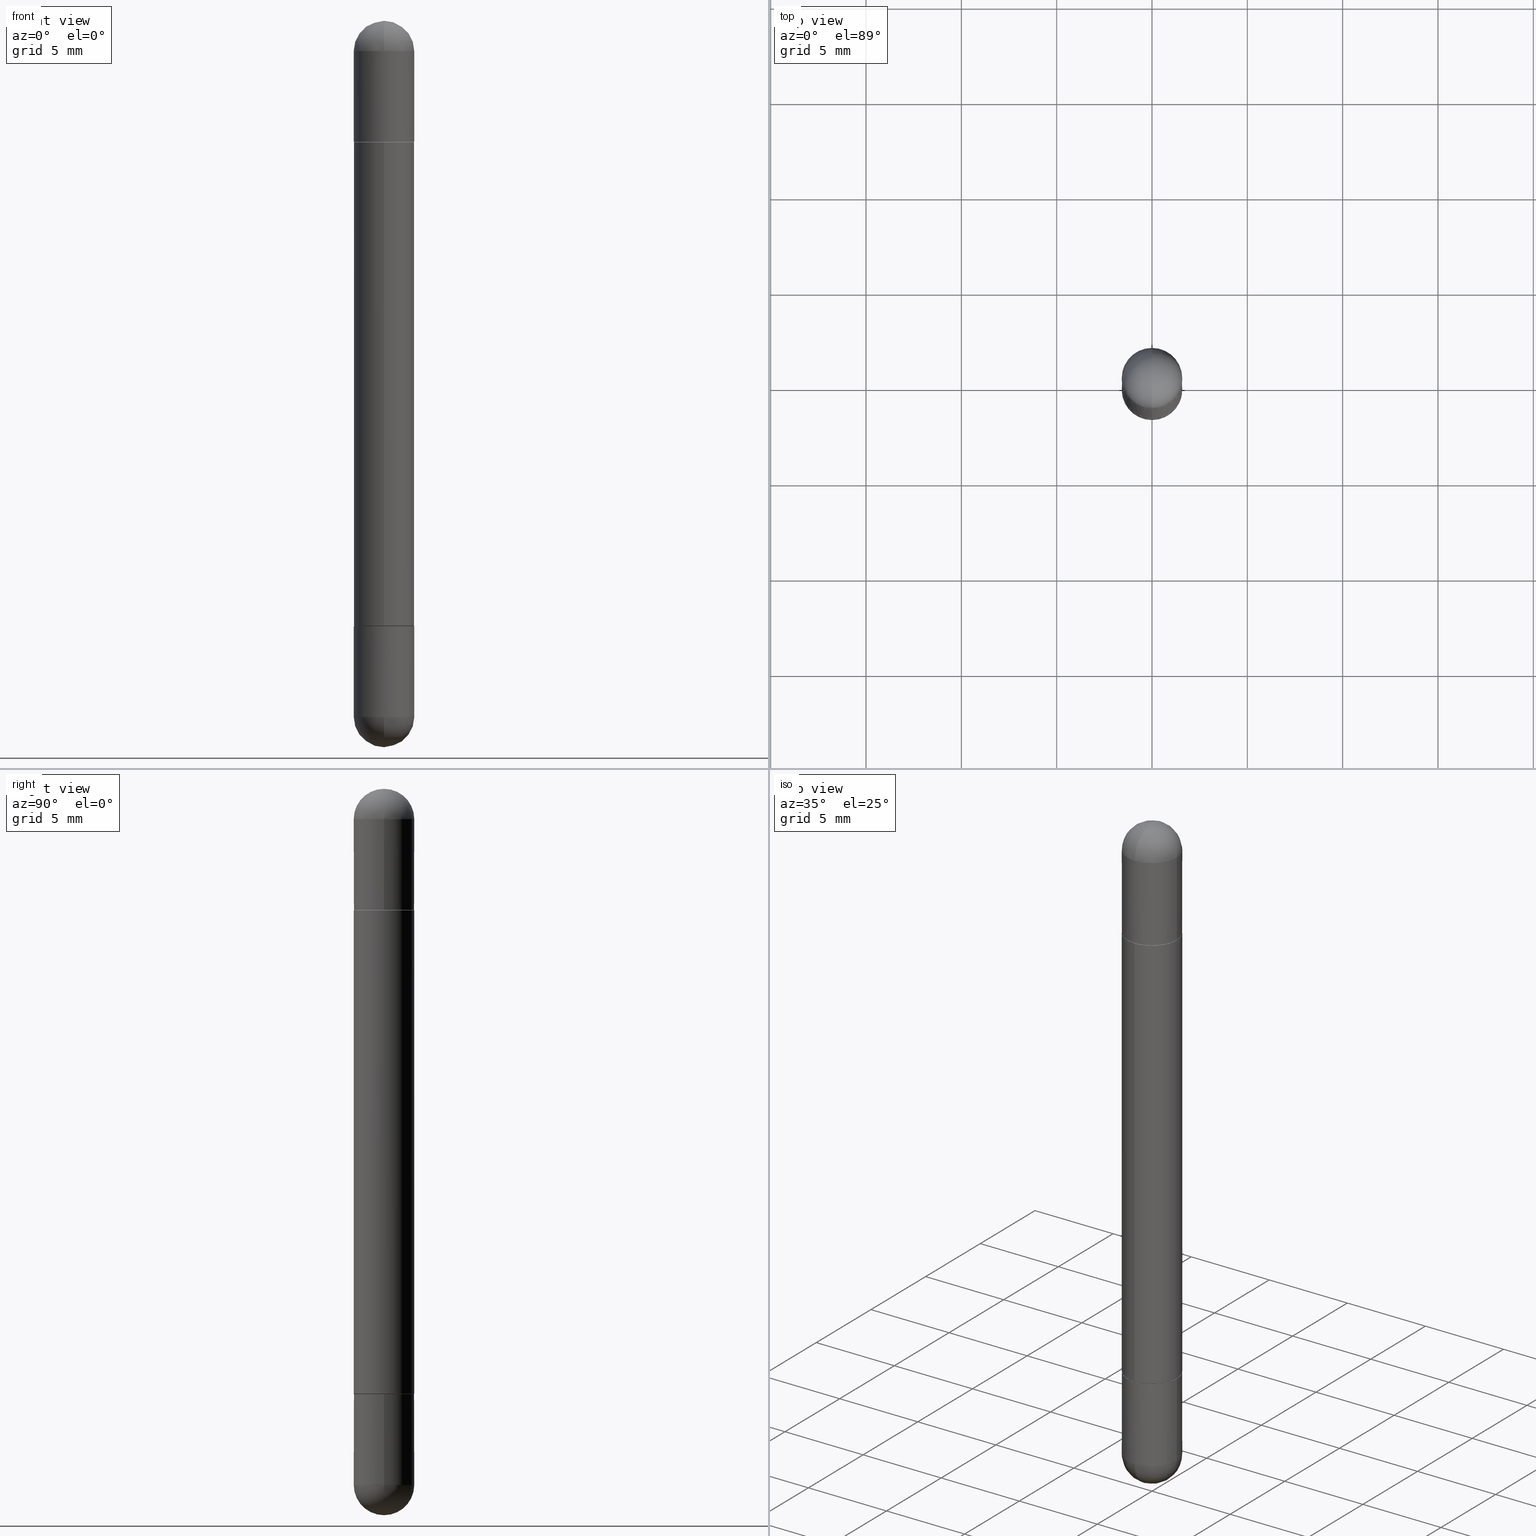
[diagram: canonical four-view strip — front | top / right | iso, engineering-drawing reading convention]
A machine part, canonical four-view strip (front | top / right | iso — engineering-drawing reading convention). The complete STEP part file that produces these views, byte-faithful:
ISO-10303-21;
HEADER;
FILE_DESCRIPTION (( 'STEP AP203' ),
    '1' );
FILE_NAME ('39614.STEP',
    '2024-03-01T12:43:19',
    ( '' ),
    ( '' ),
    'SwSTEP 2.0',
    'SolidWorks 2023',
    '' );
FILE_SCHEMA (( 'CONFIG_CONTROL_DESIGN' ));
ENDSEC;

DATA;
#1 = DIRECTION ( 'NONE',  ( -7.105427357601000281E-15, -1.000000000000000000, 0.000000000000000000 ) ) ;
#2 = VERTEX_POINT ( 'NONE', #461 ) ;
#3 = AXIS2_PLACEMENT_3D ( 'NONE', #296, #159, #338 ) ;
#4 = AXIS2_PLACEMENT_3D ( 'NONE', #14, #764, #262 ) ;
#5 =( GEOMETRIC_REPRESENTATION_CONTEXT ( 3 ) GLOBAL_UNCERTAINTY_ASSIGNED_CONTEXT ( ( #359 ) ) GLOBAL_UNIT_ASSIGNED_CONTEXT ( ( #312, #698, #658 ) ) REPRESENTATION_CONTEXT ( 'NONE', 'WORKASPACE' ) );
#6 = FACE_OUTER_BOUND ( 'NONE', #518, .T. ) ;
#7 = SPHERICAL_SURFACE ( 'NONE', #786, 0.06250000000000022204 ) ;
#8 = FACE_OUTER_BOUND ( 'NONE', #353, .T. ) ;
#9 = ADVANCED_FACE ( 'NONE', ( #317 ), #88, .T. ) ;
#10 = CARTESIAN_POINT ( 'NONE',  ( 3.056836007731421306E-29, -4.364351673553932471E-15, -1.250000000000000000 ) ) ;
#11 = CARTESIAN_POINT ( 'NONE',  ( 3.045894015080727714E-29, -4.380021229809271085E-15, -1.250000000000000000 ) ) ;
#12 = ORIENTED_EDGE ( 'NONE', *, *, #278, .F. ) ;
#13 = ADVANCED_FACE ( 'NONE', ( #8 ), #653, .T. ) ;
#14 = CARTESIAN_POINT ( 'NONE',  ( 3.184241630977248732E-29, -5.493186792727072638E-15, -0.06250000000000022204 ) ) ;
#15 = DIRECTION ( 'NONE',  ( -2.445468806185136597E-29, 3.491481338843145583E-15, -1.000000000000000000 ) ) ;
#16 = DIRECTION ( 'NONE',  ( -2.445468806185136597E-29, 3.491481338843145583E-15, 1.000000000000000000 ) ) ;
#17 = AXIS2_PLACEMENT_3D ( 'NONE', #178, #552, #565 ) ;
#18 = VECTOR ( 'NONE', #166, 39.37007874015748143 ) ;
#19 = CARTESIAN_POINT ( 'NONE',  ( 3.515361408891134418E-29, -5.019004424587023131E-15, -0.06250000000000022204 ) ) ;
#20 = CARTESIAN_POINT ( 'NONE',  ( 0.000000000000000000, 0.000000000000000000, -1.500000000000000444 ) ) ;
#21 = AXIS2_PLACEMENT_3D ( 'NONE', #337, #91, #333 ) ;
#22 = ORIENTED_EDGE ( 'NONE', *, *, #445, .T. ) ;
#23 = DIRECTION ( 'NONE',  ( 2.445468806185136597E-29, -3.491481338843145583E-15, 1.000000000000000000 ) ) ;
#24 = DATE_AND_TIME ( #412, #692 ) ;
#25 = ORIENTED_EDGE ( 'NONE', *, *, #482, .T. ) ;
#26 = CARTESIAN_POINT ( 'NONE',  ( -4.294522046776751361E-16, -0.06150000000000441225, -0.2500000000000005551 ) ) ;
#27 = DIRECTION ( 'NONE',  ( -2.445468806185136597E-29, 3.491481338843145583E-15, 1.000000000000000000 ) ) ;
#28 = ORIENTED_EDGE ( 'NONE', *, *, #157, .T. ) ;
#29 = CIRCLE ( 'NONE', #228, 0.06250000000000020817 ) ;
#30 = LINE ( 'NONE', #594, #72 ) ;
#31 = COORDINATED_UNIVERSAL_TIME_OFFSET ( 5, 0, .BEHIND. ) ;
#32 = AXIS2_PLACEMENT_3D ( 'NONE', #290, #411, #229 ) ;
#33 = CC_DESIGN_PERSON_AND_ORGANIZATION_ASSIGNMENT ( #225, #220, ( #656 ) ) ;
#34 = LINE ( 'NONE', #790, #369 ) ;
#35 = ORIENTED_EDGE ( 'NONE', *, *, #443, .F. ) ;
#36 = ADVANCED_FACE ( 'NONE', ( #645 ), #197, .T. ) ;
#37 = CARTESIAN_POINT ( 'NONE',  ( 0.06250000000000001388, -4.800786840909324141E-15, -0.2500000000000003331 ) ) ;
#38 = CARTESIAN_POINT ( 'NONE',  ( 3.056836007731421306E-29, -4.364351673553932471E-15, -0.2500000000000003331 ) ) ;
#39 = ORIENTED_EDGE ( 'NONE', *, *, #647, .T. ) ;
#40 = CARTESIAN_POINT ( 'NONE',  ( 4.364351673554259849E-16, 0.06249999999999485828, -0.06250000000000000000 ) ) ;
#41 = DIRECTION ( 'NONE',  ( 1.000000000000000000, -6.982962677686269077E-15, 0.000000000000000000 ) ) ;
#42 = ORIENTED_EDGE ( 'NONE', *, *, #157, .F. ) ;
#43 = FACE_OUTER_BOUND ( 'NONE', #485, .T. ) ;
#44 = DIRECTION ( 'NONE',  ( 2.436715212064582003E-29, -3.504016983847416079E-15, 1.000000000000000000 ) ) ;
#45 = AXIS2_PLACEMENT_3D ( 'NONE', #119, #810, #171 ) ;
#46 = AXIS2_PLACEMENT_3D ( 'NONE', #634, #66, #441 ) ;
#47 = ORIENTED_EDGE ( 'NONE', *, *, #422, .T. ) ;
#48 = ADVANCED_FACE ( 'NONE', ( #382 ), #322, .F. ) ;
#49 = AXIS2_PLACEMENT_3D ( 'NONE', #201, #453, #78 ) ;
#50 = ADVANCED_FACE ( 'NONE', ( #709 ), #387, .T. ) ;
#51 = FACE_OUTER_BOUND ( 'NONE', #253, .T. ) ;
#52 = ORIENTED_EDGE ( 'NONE', *, *, #742, .T. ) ;
#53 = CARTESIAN_POINT ( 'NONE',  ( 4.287811248607399511E-16, 0.06249999999999582279, -1.249000000000000332 ) ) ;
#54 = EDGE_LOOP ( 'NONE', ( #687, #170, #493, #28 ) ) ;
#55 = LINE ( 'NONE', #427, #584 ) ;
#56 = CC_DESIGN_DATE_AND_TIME_ASSIGNMENT ( #714, #340, ( #763 ) ) ;
#57 = AXIS2_PLACEMENT_3D ( 'NONE', #246, #623, #360 ) ;
#58 = ORIENTED_EDGE ( 'NONE', *, *, #685, .T. ) ;
#59 = VECTOR ( 'NONE', #77, 39.37007874015748854 ) ;
#60 = APPLICATION_CONTEXT ( 'configuration controlled 3d designs of mechanical parts and assemblies' ) ;
#61 = CARTESIAN_POINT ( 'NONE',  ( 3.184241630977248732E-29, -5.493186792727072638E-15, -1.437500000000000222 ) ) ;
#62 = ORIENTED_EDGE ( 'NONE', *, *, #240, .F. ) ;
#63 = LINE ( 'NONE', #747, #97 ) ;
#64 = ORIENTED_EDGE ( 'NONE', *, *, #751, .F. ) ;
#65 = PERSON ( 'UNSPECIFIED', 'UNSPECIFIED', 'UNSPECIFIED', ('UNSPECIFIED'), ('UNSPECIFIED'), ('UNSPECIFIED') ) ;
#66 = DIRECTION ( 'NONE',  ( 2.445468806185136597E-29, -3.491481338843145583E-15, 1.000000000000000000 ) ) ;
#67 = CARTESIAN_POINT ( 'NONE',  ( -0.06250000000000001388, 4.440892098500627148E-16, -3.074334431409317165E-30 ) ) ;
#68 = ORIENTED_EDGE ( 'NONE', *, *, #218, .T. ) ;
#69 = CIRCLE ( 'NONE', #198, 0.06250000000000001388 ) ;
#70 = EDGE_CURVE ( 'NONE', #808, #816, #316, .T. ) ;
#71 = CIRCLE ( 'NONE', #358, 0.06250000000000001388 ) ;
#72 = VECTOR ( 'NONE', #339, 39.37007874015748143 ) ;
#73 = AXIS2_PLACEMENT_3D ( 'NONE', #81, #74, #141 ) ;
#74 = DIRECTION ( 'NONE',  ( -2.436715212064582003E-29, 3.504016983847416079E-15, -1.000000000000000000 ) ) ;
#75 = EDGE_CURVE ( 'NONE', #308, #551, #69, .T. ) ;
#76 = DIRECTION ( 'NONE',  ( 6.982962677686266711E-15, 1.000000000000000000, 3.551402391763529759E-15 ) ) ;
#77 = DIRECTION ( 'NONE',  ( -4.937700262164799689E-15, -0.7071067811865812125, -0.7071067811865135999 ) ) ;
#78 = DIRECTION ( 'NONE',  ( 1.000000000000000000, -6.982962677686261189E-15, 0.000000000000000000 ) ) ;
#79 = DIRECTION ( 'NONE',  ( 2.438088387897960049E-29, -3.491481338843145188E-15, 1.000000000000000000 ) ) ;
#80 = DIRECTION ( 'NONE',  ( -2.436715212064582003E-29, 3.504016983847416079E-15, -1.000000000000000000 ) ) ;
#81 = CARTESIAN_POINT ( 'NONE',  ( 3.045894015080727714E-29, -4.380021229809271085E-15, -0.2500000000000003331 ) ) ;
#82 = VERTEX_POINT ( 'NONE', #287 ) ;
#83 = ADVANCED_FACE ( 'NONE', ( #355 ), #134, .T. ) ;
#84 = CIRCLE ( 'NONE', #45, 0.06150000000000003381 ) ;
#85 = CIRCLE ( 'NONE', #114, 0.06250000000000011102 ) ;
#86 = DIRECTION ( 'NONE',  ( -2.436715212064582003E-29, 3.504016983847416079E-15, 1.000000000000000000 ) ) ;
#87 = CC_DESIGN_APPROVAL ( #261, ( #763 ) ) ;
#88 = SPHERICAL_SURFACE ( 'NONE', #239, 0.06250000000000022204 ) ;
#89 = MANIFOLD_SOLID_BREP ( 'Mirror4[1]', #516 ) ;
#90 = DIRECTION ( 'NONE',  ( -2.445468806185136877E-29, 3.491481338843145188E-15, -1.000000000000000000 ) ) ;
#91 = DIRECTION ( 'NONE',  ( 0.000000000000000000, 0.000000000000000000, 1.000000000000000000 ) ) ;
#92 = DIRECTION ( 'NONE',  ( -6.982962677686266711E-15, -1.000000000000000000, 0.000000000000000000 ) ) ;
#93 = CARTESIAN_POINT ( 'NONE',  ( 0.000000000000000000, 0.000000000000000000, -1.500000000000000444 ) ) ;
#94 = DIRECTION ( 'NONE',  ( 1.000000000000000000, -6.982962677686261189E-15, 0.000000000000000000 ) ) ;
#95 = VERTEX_POINT ( 'NONE', #673 ) ;
#96 = ADVANCED_FACE ( 'NONE', ( #150 ), #416, .F. ) ;
#97 = VECTOR ( 'NONE', #554, 39.37007874015748143 ) ;
#98 = DIRECTION ( 'NONE',  ( -6.982962677686265922E-15, -1.000000000000000000, -3.331521943493002126E-15 ) ) ;
#99 = DATE_AND_TIME ( #602, #640 ) ;
#100 = AXIS2_PLACEMENT_3D ( 'NONE', #200, #80, #578 ) ;
#101 = AXIS2_PLACEMENT_3D ( 'NONE', #379, #571, #315 ) ;
#102 = CARTESIAN_POINT ( 'NONE',  ( 3.515361408891134418E-29, -5.019004424587023131E-15, -1.437500000000000222 ) ) ;
#103 = VERTEX_POINT ( 'NONE', #401 ) ;
#104 = FACE_OUTER_BOUND ( 'NONE', #624, .T. ) ;
#105 = CALENDAR_DATE ( 2024, 1, 3 ) ;
#106 = DIRECTION ( 'NONE',  ( -2.436715212064582003E-29, 3.504016983847416079E-15, 1.000000000000000000 ) ) ;
#107 = VERTEX_POINT ( 'NONE', #784 ) ;
#108 = SPHERICAL_SURFACE ( 'NONE', #199, 0.06250000000000022204 ) ;
#109 = EDGE_CURVE ( 'NONE', #107, #377, #161, .T. ) ;
#110 = DIRECTION ( 'NONE',  ( -6.982962677686265922E-15, -1.000000000000000000, -3.278217592397104818E-15 ) ) ;
#111 = ORIENTED_EDGE ( 'NONE', *, *, #250, .F. ) ;
#112 = LINE ( 'NONE', #237, #517 ) ;
#113 = AXIS2_PLACEMENT_3D ( 'NONE', #419, #434, #298 ) ;
#114 = AXIS2_PLACEMENT_3D ( 'NONE', #522, #777, #479 ) ;
#115 = ORIENTED_EDGE ( 'NONE', *, *, #742, .F. ) ;
#116 = LOCAL_TIME ( 7, 43, 19.00000000000000000, #460 ) ;
#117 = DIRECTION ( 'NONE',  ( 1.000000000000000000, -6.982962677686267499E-15, 0.000000000000000000 ) ) ;
#118 = ORIENTED_EDGE ( 'NONE', *, *, #240, .T. ) ;
#119 = CARTESIAN_POINT ( 'NONE',  ( 3.045894015080727714E-29, -4.380021229809271085E-15, -0.2500000000000003331 ) ) ;
#120 = ORIENTED_EDGE ( 'NONE', *, *, #323, .T. ) ;
#121 = EDGE_CURVE ( 'NONE', #679, #202, #755, .T. ) ;
#122 = DIRECTION ( 'NONE',  ( 2.445468806185136597E-29, -3.491481338843145583E-15, 1.000000000000000000 ) ) ;
#123 = CIRCLE ( 'NONE', #557, 0.06250000000000022204 ) ;
#124 = ORIENTED_EDGE ( 'NONE', *, *, #70, .T. ) ;
#125 = VECTOR ( 'NONE', #737, 39.37007874015748143 ) ;
#126 = FACE_OUTER_BOUND ( 'NONE', #690, .T. ) ;
#127 = ORIENTED_EDGE ( 'NONE', *, *, #75, .F. ) ;
#128 = DIRECTION ( 'NONE',  ( -2.436715212064582003E-29, 3.504016983847416079E-15, 1.000000000000000000 ) ) ;
#129 = EDGE_CURVE ( 'NONE', #374, #95, #29, .T. ) ;
#130 = EDGE_LOOP ( 'NONE', ( #288, #64 ) ) ;
#131 = EDGE_CURVE ( 'NONE', #202, #679, #330, .T. ) ;
#132 = DIRECTION ( 'NONE',  ( 1.000000000000000000, -6.982962677686261189E-15, 0.000000000000000000 ) ) ;
#133 = VERTEX_POINT ( 'NONE', #794 ) ;
#134 = CONICAL_SURFACE ( 'NONE', #3, 0.06150000000000003381, 0.7853981633974995713 ) ;
#135 = VECTOR ( 'NONE', #582, 39.37007874015748143 ) ;
#136 = FACE_OUTER_BOUND ( 'NONE', #223, .T. ) ;
#137 = FACE_OUTER_BOUND ( 'NONE', #356, .T. ) ;
#138 = CARTESIAN_POINT ( 'NONE',  ( 3.184241630977248732E-29, -5.493186792727072638E-15, -1.437500000000000222 ) ) ;
#139 = DIRECTION ( 'NONE',  ( 2.445468806185136597E-29, -3.491481338843145583E-15, 1.000000000000000000 ) ) ;
#140 = EDGE_CURVE ( 'NONE', #371, #679, #291, .T. ) ;
#141 = DIRECTION ( 'NONE',  ( -6.982962677686265922E-15, -1.000000000000000000, -3.331521943493002126E-15 ) ) ;
#142 = ORIENTED_EDGE ( 'NONE', *, *, #403, .T. ) ;
#143 = SPHERICAL_SURFACE ( 'NONE', #572, 0.06250000000000022204 ) ;
#144 = APPROVAL_DATE_TIME ( #667, #469 ) ;
#145 = ORIENTED_EDGE ( 'NONE', *, *, #409, .F. ) ;
#146 = CONICAL_SURFACE ( 'NONE', #614, 0.06150000000000003381, 0.7853981633974995713 ) ;
#147 = CIRCLE ( 'NONE', #449, 0.06250000000000001388 ) ;
#148 = DIRECTION ( 'NONE',  ( 1.000000000000000000, -6.860497997771530774E-15, -4.840798879624142912E-29 ) ) ;
#149 = CALENDAR_DATE ( 2024, 1, 3 ) ;
#150 = FACE_OUTER_BOUND ( 'NONE', #342, .T. ) ;
#151 = CARTESIAN_POINT ( 'NONE',  ( 3.184241630977248732E-29, -5.493186792727072638E-15, -0.06250000000000022204 ) ) ;
#152 = DIRECTION ( 'NONE',  ( 1.000000000000000000, -6.982962677686269077E-15, 0.000000000000000000 ) ) ;
#153 = ADVANCED_FACE ( 'NONE', ( #804 ), #347, .F. ) ;
#154 = ORIENTED_EDGE ( 'NONE', *, *, #632, .T. ) ;
#155 = PRODUCT_DEFINITION_SHAPE ( 'NONE', 'NONE',  #763 ) ;
#156 = DIRECTION ( 'NONE',  ( 1.000000000000000000, -6.982962677686261189E-15, 0.000000000000000000 ) ) ;
#157 = EDGE_CURVE ( 'NONE', #816, #808, #597, .T. ) ;
#158 = PERSON_AND_ORGANIZATION ( #65, #231 ) ;
#159 = DIRECTION ( 'NONE',  ( -2.436715212064582003E-29, 3.504016983847416079E-15, -1.000000000000000000 ) ) ;
#160 = ORIENTED_EDGE ( 'NONE', *, *, #70, .F. ) ;
#161 = CIRCLE ( 'NONE', #266, 0.06250000000000020817 ) ;
#162 = FACE_OUTER_BOUND ( 'NONE', #481, .T. ) ;
#163 = AXIS2_PLACEMENT_3D ( 'NONE', #10, #651, #255 ) ;
#164 = DIRECTION ( 'NONE',  ( -1.000000000000000000, 6.982962677686265922E-15, 4.883557194083112340E-29 ) ) ;
#165 = ORIENTED_EDGE ( 'NONE', *, *, #647, .F. ) ;
#166 = DIRECTION ( 'NONE',  ( -2.436715212064582283E-29, 3.504016983847416079E-15, -1.000000000000000000 ) ) ;
#167 = DIRECTION ( 'NONE',  ( 1.000000000000000000, -6.982962677686261189E-15, 0.000000000000000000 ) ) ;
#168 = EDGE_LOOP ( 'NONE', ( #729, #665, #207, #62, #25 ) ) ;
#169 = PLANE ( 'NONE',  #113 ) ;
#170 = ORIENTED_EDGE ( 'NONE', *, *, #457, .F. ) ;
#171 = DIRECTION ( 'NONE',  ( -6.982962677686265922E-15, -1.000000000000000000, -3.331521943493002126E-15 ) ) ;
#172 = CIRCLE ( 'NONE', #32, 0.06250000000000001388 ) ;
#173 = CC_DESIGN_SECURITY_CLASSIFICATION ( #243, ( #656 ) ) ;
#174 = ORIENTED_EDGE ( 'NONE', *, *, #383, .T. ) ;
#175 = LOCAL_TIME ( 7, 43, 19.00000000000000000, #718 ) ;
#176 = EDGE_LOOP ( 'NONE', ( #247, #361, #120, #745 ) ) ;
#177 = CC_DESIGN_PERSON_AND_ORGANIZATION_ASSIGNMENT ( #672, #591, ( #284 ) ) ;
#178 = CARTESIAN_POINT ( 'NONE',  ( 3.184241630977248732E-29, -5.493186792727072638E-15, -1.437500000000000222 ) ) ;
#179 = ORIENTED_EDGE ( 'NONE', *, *, #204, .T. ) ;
#180 = ADVANCED_FACE ( 'NONE', ( #484 ), #603, .T. ) ;
#181 = CARTESIAN_POINT ( 'NONE',  ( 3.184241630977248732E-29, -5.493186792727072638E-15, -0.06250000000000022204 ) ) ;
#182 = ORIENTED_EDGE ( 'NONE', *, *, #506, .T. ) ;
#183 = CARTESIAN_POINT ( 'NONE',  ( 0.06250000000000001388, -4.364351673553918173E-16, 3.047610484872460571E-30 ) ) ;
#184 = CARTESIAN_POINT ( 'NONE',  ( 3.045894015080727714E-29, -4.380021229809271085E-15, -0.2500000000000003331 ) ) ;
#185 = ORIENTED_EDGE ( 'NONE', *, *, #573, .T. ) ;
#186 = CIRCLE ( 'NONE', #637, 0.06250000000000001388 ) ;
#187 = AXIS2_PLACEMENT_3D ( 'NONE', #579, #442, #263 ) ;
#188 = EDGE_CURVE ( 'NONE', #271, #371, #744, .T. ) ;
#189 = DIRECTION ( 'NONE',  ( -6.982962677686265922E-15, -1.000000000000000000, 4.370956789862806950E-15 ) ) ;
#190 = CYLINDRICAL_SURFACE ( 'NONE', #627, 0.06250000000000001388 ) ;
#191 = EDGE_LOOP ( 'NONE', ( #771, #329 ) ) ;
#192 = FACE_OUTER_BOUND ( 'NONE', #553, .T. ) ;
#193 = FACE_OUTER_BOUND ( 'NONE', #774, .T. ) ;
#194 = ORIENTED_EDGE ( 'NONE', *, *, #121, .T. ) ;
#195 = DIRECTION ( 'NONE',  ( 1.000000000000000000, -6.982962677686261189E-15, 0.000000000000000000 ) ) ;
#196 = LINE ( 'NONE', #753, #532 ) ;
#197 = SPHERICAL_SURFACE ( 'NONE', #421, 0.06250000000000022204 ) ;
#198 = AXIS2_PLACEMENT_3D ( 'NONE', #102, #27, #167 ) ;
#199 = AXIS2_PLACEMENT_3D ( 'NONE', #151, #540, #661 ) ;
#200 = CARTESIAN_POINT ( 'NONE',  ( 3.045894015080727714E-29, -4.380021229809271085E-15, -0.2500000000000003331 ) ) ;
#201 = CARTESIAN_POINT ( 'NONE',  ( 3.515361408891134418E-29, -5.019004424587023131E-15, -1.437500000000000222 ) ) ;
#202 = VERTEX_POINT ( 'NONE', #341 ) ;
#203 = EDGE_CURVE ( 'NONE', #377, #107, #733, .T. ) ;
#204 = EDGE_CURVE ( 'NONE', #699, #82, #488, .T. ) ;
#205 = CARTESIAN_POINT ( 'NONE',  ( 3.515361408891134418E-29, -5.019004424587023131E-15, -0.06250000000000022204 ) ) ;
#206 = CALENDAR_DATE ( 2024, 1, 3 ) ;
#207 = ORIENTED_EDGE ( 'NONE', *, *, #245, .F. ) ;
#208 = CARTESIAN_POINT ( 'NONE',  ( -4.364351673553924090E-16, -0.06250000000000011102, -1.500000000000000666 ) ) ;
#209 = PERSON_AND_ORGANIZATION ( #65, #231 ) ;
#210 = ORIENTED_EDGE ( 'NONE', *, *, #598, .T. ) ;
#211 = VECTOR ( 'NONE', #668, 39.37007874015748143 ) ;
#212 = CIRCLE ( 'NONE', #4, 0.06250000000000022204 ) ;
#213 = EDGE_CURVE ( 'NONE', #440, #524, #680, .T. ) ;
#214 = LINE ( 'NONE', #601, #705 ) ;
#215 = PERSON_AND_ORGANIZATION ( #65, #231 ) ;
#216 = CARTESIAN_POINT ( 'NONE',  ( 3.045894015080727714E-29, -4.380021229809271085E-15, -0.2500000000000003331 ) ) ;
#217 = ORIENTED_EDGE ( 'NONE', *, *, #573, .F. ) ;
#218 = EDGE_CURVE ( 'NONE', #802, #377, #34, .T. ) ;
#219 = LINE ( 'NONE', #354, #615 ) ;
#220 = PERSON_AND_ORGANIZATION_ROLE ( 'creator' ) ;
#221 = DIRECTION ( 'NONE',  ( 4.851104656541212766E-15, 0.7071067811865862085, -0.7071067811865088260 ) ) ;
#222 = VERTEX_POINT ( 'NONE', #471 ) ;
#223 = EDGE_LOOP ( 'NONE', ( #505, #683, #47, #538, #688 ) ) ;
#224 = DIRECTION ( 'NONE',  ( 2.438088387897960049E-29, -3.491481338843145188E-15, 1.000000000000000000 ) ) ;
#225 = PERSON_AND_ORGANIZATION ( #65, #231 ) ;
#226 = DIRECTION ( 'NONE',  ( -6.982962677686265922E-15, -1.000000000000000000, -3.504016983847416079E-15 ) ) ;
#227 = VERTEX_POINT ( 'NONE', #693 ) ;
#228 = AXIS2_PLACEMENT_3D ( 'NONE', #542, #106, #607 ) ;
#229 = DIRECTION ( 'NONE',  ( 1.000000000000000000, -6.982962677686269077E-15, 0.000000000000000000 ) ) ;
#230 = AXIS2_PLACEMENT_3D ( 'NONE', #465, #525, #98 ) ;
#231 = ORGANIZATION ( 'UNSPECIFIED', 'UNSPECIFIED', '' ) ;
#232 = DIRECTION ( 'NONE',  ( -2.436715212064582003E-29, 3.504016983847416079E-15, -1.000000000000000000 ) ) ;
#233 = ORIENTED_EDGE ( 'NONE', *, *, #472, .F. ) ;
#234 = DIRECTION ( 'NONE',  ( -2.445468806185136597E-29, 3.491481338843145583E-15, 1.000000000000000000 ) ) ;
#235 = CARTESIAN_POINT ( 'NONE',  ( 3.043457299868662493E-29, -4.376517212825422160E-15, -0.2510000000000003895 ) ) ;
#236 = EDGE_LOOP ( 'NONE', ( #655, #487, #513, #118, #417 ) ) ;
#237 = CARTESIAN_POINT ( 'NONE',  ( -4.294522046776751361E-16, -0.06150000000000441225, -1.249999999999999778 ) ) ;
#238 = ORIENTED_EDGE ( 'NONE', *, *, #519, .T. ) ;
#239 = AXIS2_PLACEMENT_3D ( 'NONE', #138, #574, #589 ) ;
#240 = EDGE_CURVE ( 'NONE', #103, #244, #752, .T. ) ;
#241 = CARTESIAN_POINT ( 'NONE',  ( 0.06250000000000001388, -4.800786840909324141E-15, -1.250000000000000000 ) ) ;
#242 = AXIS2_PLACEMENT_3D ( 'NONE', #770, #520, #132 ) ;
#243 = SECURITY_CLASSIFICATION ( '', '', #782 ) ;
#244 = VERTEX_POINT ( 'NONE', #241 ) ;
#245 = EDGE_CURVE ( 'NONE', #244, #543, #448, .T. ) ;
#246 = CARTESIAN_POINT ( 'NONE',  ( 3.056836007731421306E-29, -4.364351673553932471E-15, -1.250000000000000000 ) ) ;
#247 = ORIENTED_EDGE ( 'NONE', *, *, #204, .F. ) ;
#248 = DIRECTION ( 'NONE',  ( -1.000000000000000000, 0.000000000000000000, 0.000000000000000000 ) ) ;
#249 = ORIENTED_EDGE ( 'NONE', *, *, #710, .T. ) ;
#250 = EDGE_CURVE ( 'NONE', #808, #2, #63, .T. ) ;
#251 = DIRECTION ( 'NONE',  ( -6.982962677686265922E-15, -1.000000000000000000, -3.331521943493002126E-15 ) ) ;
#252 = AXIS2_PLACEMENT_3D ( 'NONE', #430, #122, #740 ) ;
#253 = EDGE_LOOP ( 'NONE', ( #402, #530, #546, #210, #154 ) ) ;
#254 = AXIS2_PLACEMENT_3D ( 'NONE', #455, #128, #375 ) ;
#255 = DIRECTION ( 'NONE',  ( 1.000000000000000000, -6.982962677686269077E-15, 0.000000000000000000 ) ) ;
#256 = DIRECTION ( 'NONE',  ( -2.445468806185136597E-29, 3.491481338843145583E-15, -1.000000000000000000 ) ) ;
#257 = ORIENTED_EDGE ( 'NONE', *, *, #560, .T. ) ;
#258 = DIRECTION ( 'NONE',  ( -2.445468806185136597E-29, 3.491481338843145583E-15, -1.000000000000000000 ) ) ;
#259 = DIRECTION ( 'NONE',  ( -6.982962677686265922E-15, -1.000000000000000000, -3.331521943493002126E-15 ) ) ;
#260 = DIRECTION ( 'NONE',  ( 1.000000000000000000, -6.982962677686266711E-15, -4.883557194083112901E-29 ) ) ;
#261 = APPROVAL ( #773, 'UNSPECIFIED' ) ;
#262 = DIRECTION ( 'NONE',  ( -6.982962677686266711E-15, -1.000000000000000000, 0.000000000000000000 ) ) ;
#263 = DIRECTION ( 'NONE',  ( -1.000000000000000000, 6.982962677686265922E-15, -4.876176775795935793E-29 ) ) ;
#264 = EDGE_CURVE ( 'NONE', #273, #739, #123, .T. ) ;
#265 = DIRECTION ( 'NONE',  ( 1.000000000000000000, -6.982962677686267499E-15, 4.876176775795935793E-29 ) ) ;
#266 = AXIS2_PLACEMENT_3D ( 'NONE', #725, #44, #550 ) ;
#267 = CONICAL_SURFACE ( 'NONE', #100, 0.06150000000000003381, 0.7853981633974995713 ) ;
#268 = AXIS2_PLACEMENT_3D ( 'NONE', #20, #447, #707 ) ;
#269 = DIRECTION ( 'NONE',  ( 2.445468806185136597E-29, -3.491481338843145583E-15, 1.000000000000000000 ) ) ;
#270 = LINE ( 'NONE', #67, #331 ) ;
#271 = VERTEX_POINT ( 'NONE', #743 ) ;
#272 = CARTESIAN_POINT ( 'NONE',  ( 4.253508758618661753E-16, 0.06149999999999564843, -0.2500000000000001110 ) ) ;
#273 = VERTEX_POINT ( 'NONE', #561 ) ;
#274 = EDGE_CURVE ( 'NONE', #699, #524, #669, .T. ) ;
#275 = CARTESIAN_POINT ( 'NONE',  ( -0.06250000000000001388, -4.247588839220414790E-15, -1.250000000000000000 ) ) ;
#276 = PERSON_AND_ORGANIZATION_ROLE ( 'creator' ) ;
#277 = CARTESIAN_POINT ( 'NONE',  ( 3.515361408891134418E-29, -5.019004424587023131E-15, -0.06250000000000022204 ) ) ;
#278 = EDGE_CURVE ( 'NONE', #273, #308, #462, .T. ) ;
#279 = ORIENTED_EDGE ( 'NONE', *, *, #203, .F. ) ;
#280 = AXIS2_PLACEMENT_3D ( 'NONE', #650, #528, #612 ) ;
#281 = CIRCLE ( 'NONE', #547, 0.06250000000000022204 ) ;
#282 = DIRECTION ( 'NONE',  ( 1.000000000000000000, -6.982962677686261189E-15, 0.000000000000000000 ) ) ;
#283 = COORDINATED_UNIVERSAL_TIME_OFFSET ( 5, 0, .BEHIND. ) ;
#284 = PRODUCT ( '39614', '39614', '', ( #793 ) ) ;
#285 = DIRECTION ( 'NONE',  ( -2.436715212064581723E-29, 3.504016983847416079E-15, -1.000000000000000000 ) ) ;
#286 = ORIENTED_EDGE ( 'NONE', *, *, #482, .F. ) ;
#287 = CARTESIAN_POINT ( 'NONE',  ( 4.364351673554259849E-16, 0.06249999999999485828, -0.06250000000000000000 ) ) ;
#288 = ORIENTED_EDGE ( 'NONE', *, *, #519, .F. ) ;
#289 = EDGE_CURVE ( 'NONE', #802, #222, #84, .T. ) ;
#290 = CARTESIAN_POINT ( 'NONE',  ( 3.056836007731421306E-29, -4.364351673553932471E-15, -0.2500000000000003331 ) ) ;
#291 = LINE ( 'NONE', #799, #211 ) ;
#292 = ORIENTED_EDGE ( 'NONE', *, *, #278, .T. ) ;
#293 = AXIS2_PLACEMENT_3D ( 'NONE', #216, #285, #226 ) ;
#294 = CYLINDRICAL_SURFACE ( 'NONE', #585, 0.06250000000000001388 ) ;
#295 = CIRCLE ( 'NONE', #242, 0.06250000000000001388 ) ;
#296 = CARTESIAN_POINT ( 'NONE',  ( 3.045894015080727714E-29, -4.380021229809271085E-15, -0.2500000000000003331 ) ) ;
#297 = ORIENTED_EDGE ( 'NONE', *, *, #662, .T. ) ;
#298 = DIRECTION ( 'NONE',  ( -6.982962677686265922E-15, -1.000000000000000000, 3.504016983847416079E-15 ) ) ;
#299 = VERTEX_POINT ( 'NONE', #630 ) ;
#300 = EDGE_CURVE ( 'NONE', #613, #816, #55, .T. ) ;
#301 = CARTESIAN_POINT ( 'NONE',  ( 4.287811248607524250E-16, 0.06249999999999581585, -0.2510000000000002229 ) ) ;
#302 = ORIENTED_EDGE ( 'NONE', *, *, #264, .F. ) ;
#303 = ADVANCED_FACE ( 'NONE', ( #126 ), #146, .T. ) ;
#304 = AXIS2_PLACEMENT_3D ( 'NONE', #689, #490, #311 ) ;
#305 = CARTESIAN_POINT ( 'NONE',  ( 3.045894015080727714E-29, -4.380021229809271085E-15, -0.2500000000000003331 ) ) ;
#306 = CIRCLE ( 'NONE', #436, 0.06150000000000003381 ) ;
#307 = ORIENTED_EDGE ( 'NONE', *, *, #250, .T. ) ;
#308 = VERTEX_POINT ( 'NONE', #372 ) ;
#309 = DIRECTION ( 'NONE',  ( -4.937700262164799689E-15, -0.7071067811865812125, 0.7071067811865135999 ) ) ;
#310 = ORIENTED_EDGE ( 'NONE', *, *, #218, .F. ) ;
#311 = DIRECTION ( 'NONE',  ( 6.860497997771530774E-15, 1.000000000000000000, 0.000000000000000000 ) ) ;
#312 =( CONVERSION_BASED_UNIT ( 'INCH', #583 ) LENGTH_UNIT ( ) NAMED_UNIT ( #527 ) );
#313 = ORIENTED_EDGE ( 'NONE', *, *, #140, .T. ) ;
#314 = CARTESIAN_POINT ( 'NONE',  ( 3.043457299868662493E-29, -4.376517212825422160E-15, -1.248999999999999888 ) ) ;
#315 = DIRECTION ( 'NONE',  ( -6.982962677686265922E-15, -1.000000000000000000, 4.442029257990669764E-15 ) ) ;
#316 = CIRCLE ( 'NONE', #280, 0.06250000000000020817 ) ;
#317 = FACE_OUTER_BOUND ( 'NONE', #468, .T. ) ;
#318 = CIRCLE ( 'NONE', #254, 0.06150000000000003381 ) ;
#319 = DIRECTION ( 'NONE',  ( 1.000000000000000000, -6.982962677686269077E-15, 0.000000000000000000 ) ) ;
#320 = CC_DESIGN_PERSON_AND_ORGANIZATION_ASSIGNMENT ( #391, #652, ( #656 ) ) ;
#321 = DIRECTION ( 'NONE',  ( 1.000000000000000000, -6.982962677686266711E-15, -4.883557194083112901E-29 ) ) ;
#322 = PLANE ( 'NONE',  #811 ) ;
#323 = EDGE_CURVE ( 'NONE', #524, #133, #500, .T. ) ;
#324 = FACE_OUTER_BOUND ( 'NONE', #760, .T. ) ;
#325 = DIRECTION ( 'NONE',  ( 2.436715212064582003E-29, -3.504016983847416079E-15, 1.000000000000000000 ) ) ;
#326 = CARTESIAN_POINT ( 'NONE',  ( 0.000000000000000000, 0.000000000000000000, 0.000000000000000000 ) ) ;
#327 = CARTESIAN_POINT ( 'NONE',  ( 3.045894015080727714E-29, -4.380021229809271085E-15, -0.2500000000000003331 ) ) ;
#328 = CARTESIAN_POINT ( 'NONE',  ( 0.000000000000000000, 0.000000000000000000, -1.500000000000000444 ) ) ;
#329 = ORIENTED_EDGE ( 'NONE', *, *, #422, .F. ) ;
#330 = CIRCLE ( 'NONE', #380, 0.06250000000000001388 ) ;
#331 = VECTOR ( 'NONE', #631, 39.37007874015748143 ) ;
#332 = DIRECTION ( 'NONE',  ( -2.436715212064582283E-29, 3.504016983847416079E-15, -1.000000000000000000 ) ) ;
#333 = DIRECTION ( 'NONE',  ( 1.000000000000000000, 0.000000000000000000, 0.000000000000000000 ) ) ;
#334 = EDGE_LOOP ( 'NONE', ( #160, #307, #674, #618 ) ) ;
#335 = ADVANCED_FACE ( 'NONE', ( #628 ), #169, .F. ) ;
#336 = FACE_OUTER_BOUND ( 'NONE', #635, .T. ) ;
#337 = CARTESIAN_POINT ( 'NONE',  ( 0.000000000000000000, 0.000000000000000000, 0.000000000000000000 ) ) ;
#338 = DIRECTION ( 'NONE',  ( -6.982962677686265922E-15, -1.000000000000000000, -3.331521943493002126E-15 ) ) ;
#339 = DIRECTION ( 'NONE',  ( -2.445468806185136877E-29, 3.491481338843145188E-15, -1.000000000000000000 ) ) ;
#340 = DATE_TIME_ROLE ( 'creation_date' ) ;
#341 = CARTESIAN_POINT ( 'NONE',  ( -0.06250000000000001388, -4.262896924209756684E-15, -0.2500000000000003331 ) ) ;
#342 = EDGE_LOOP ( 'NONE', ( #58, #586 ) ) ;
#343 = AXIS2_PLACEMENT_3D ( 'NONE', #277, #413, #596 ) ;
#344 = MANIFOLD_SOLID_BREP ( 'Combine1', #780 ) ;
#345 = AXIS2_PLACEMENT_3D ( 'NONE', #425, #682, #117 ) ;
#346 = CARTESIAN_POINT ( 'NONE',  ( 3.515361408891134418E-29, -5.019004424587023131E-15, -0.06250000000000022204 ) ) ;
#347 = PLANE ( 'NONE',  #293 ) ;
#348 = EDGE_CURVE ( 'NONE', #2, #227, #569, .T. ) ;
#349 = VERTEX_POINT ( 'NONE', #807 ) ;
#350 = EDGE_CURVE ( 'NONE', #621, #95, #112, .T. ) ;
#351 = LINE ( 'NONE', #208, #125 ) ;
#352 = CARTESIAN_POINT ( 'NONE',  ( 0.000000000000000000, 0.000000000000000000, -0.7500000000000002220 ) ) ;
#353 = EDGE_LOOP ( 'NONE', ( #787, #458, #677, #629 ) ) ;
#354 = CARTESIAN_POINT ( 'NONE',  ( 0.06250000000000001388, -4.364351673553918173E-16, -1.500000000000000444 ) ) ;
#355 = FACE_OUTER_BOUND ( 'NONE', #54, .T. ) ;
#356 = EDGE_LOOP ( 'NONE', ( #696, #142 ) ) ;
#357 = AXIS2_PLACEMENT_3D ( 'NONE', #352, #728, #545 ) ;
#358 = AXIS2_PLACEMENT_3D ( 'NONE', #470, #792, #282 ) ;
#359 = UNCERTAINTY_MEASURE_WITH_UNIT (LENGTH_MEASURE( 1.000000000000000082E-05 ), #312, 'distance_accuracy_value', 'NONE');
#360 = DIRECTION ( 'NONE',  ( 1.000000000000000000, -6.982962677686269077E-15, 0.000000000000000000 ) ) ;
#361 = ORIENTED_EDGE ( 'NONE', *, *, #274, .T. ) ;
#362 = ADVANCED_FACE ( 'NONE', ( #617 ), #749, .T. ) ;
#363 = ADVANCED_FACE ( 'NONE', ( #51 ), #486, .T. ) ;
#364 = CARTESIAN_POINT ( 'NONE',  ( -0.06250000000000001388, -4.262896924209757473E-15, -0.06250000000000022204 ) ) ;
#365 = VERTEX_POINT ( 'NONE', #364 ) ;
#366 = DIRECTION ( 'NONE',  ( -2.445468806185136877E-29, 3.491481338843145188E-15, 1.000000000000000000 ) ) ;
#367 = MANIFOLD_SOLID_BREP ( 'Body-Move/Copy2[1]', #625 ) ;
#368 = ORIENTED_EDGE ( 'NONE', *, *, #660, .T. ) ;
#369 = VECTOR ( 'NONE', #221, 39.37007874015748143 ) ;
#370 = DIRECTION ( 'NONE',  ( -1.000000000000000000, 7.105427357601001070E-15, -4.926315508542082329E-29 ) ) ;
#371 = VERTEX_POINT ( 'NONE', #620 ) ;
#372 = CARTESIAN_POINT ( 'NONE',  ( 4.364351673554259849E-16, 0.06249999999999485828, -1.437500000000000444 ) ) ;
#373 = CARTESIAN_POINT ( 'NONE',  ( -4.364351673553627281E-16, -0.06250000000000459355, -0.2510000000000006115 ) ) ;
#374 = VERTEX_POINT ( 'NONE', #53 ) ;
#375 = DIRECTION ( 'NONE',  ( -6.982962677686265922E-15, -1.000000000000000000, 4.442029257990669764E-15 ) ) ;
#376 = DIRECTION ( 'NONE',  ( -2.445468806185136877E-29, 3.491481338843145188E-15, -1.000000000000000000 ) ) ;
#377 = VERTEX_POINT ( 'NONE', #301 ) ;
#378 = LINE ( 'NONE', #638, #18 ) ;
#379 = CARTESIAN_POINT ( 'NONE',  ( 3.045894015080727714E-29, -4.380021229809271085E-15, -1.250000000000000000 ) ) ;
#380 = AXIS2_PLACEMENT_3D ( 'NONE', #38, #592, #41 ) ;
#381 = AXIS2_PLACEMENT_3D ( 'NONE', #93, #605, #730 ) ;
#382 = FACE_OUTER_BOUND ( 'NONE', #191, .T. ) ;
#383 = EDGE_CURVE ( 'NONE', #222, #107, #643, .T. ) ;
#384 = CARTESIAN_POINT ( 'NONE',  ( -0.06250000000000001388, -4.262896924209757473E-15, -0.06250000000000022204 ) ) ;
#385 = CARTESIAN_POINT ( 'NONE',  ( -0.06250000000000001388, -4.262896924209756684E-15, -0.2500000000000003331 ) ) ;
#386 = EDGE_CURVE ( 'NONE', #431, #374, #706, .T. ) ;
#387 = CYLINDRICAL_SURFACE ( 'NONE', #636, 0.06250000000000001388 ) ;
#388 = DIRECTION ( 'NONE',  ( 1.000000000000000000, -6.982962677686267499E-15, 0.000000000000000000 ) ) ;
#389 = PLANE ( 'NONE',  #187 ) ;
#390 = CARTESIAN_POINT ( 'NONE',  ( 3.184241630977248732E-29, -5.493186792727072638E-15, -1.437500000000000222 ) ) ;
#391 = PERSON_AND_ORGANIZATION ( #65, #231 ) ;
#392 = EDGE_LOOP ( 'NONE', ( #604, #257, #812, #428, #567 ) ) ;
#393 = AXIS2_PLACEMENT_3D ( 'NONE', #732, #398, #110 ) ;
#394 = AXIS2_PLACEMENT_3D ( 'NONE', #570, #139, #319 ) ;
#395 = CC_DESIGN_APPROVAL ( #469, ( #656 ) ) ;
#396 = DIRECTION ( 'NONE',  ( 6.860497997771530774E-15, 1.000000000000000000, 0.000000000000000000 ) ) ;
#397 = APPROVAL_ROLE ( '' ) ;
#398 = DIRECTION ( 'NONE',  ( 2.436715212064582003E-29, -3.504016983847416079E-15, 1.000000000000000000 ) ) ;
#399 = DIRECTION ( 'NONE',  ( -2.436715212064581723E-29, 3.504016983847416079E-15, -1.000000000000000000 ) ) ;
#400 = APPROVAL_ROLE ( '' ) ;
#401 = CARTESIAN_POINT ( 'NONE',  ( 0.06250000000000001388, -5.128113216425869076E-15, -1.437500000000000222 ) ) ;
#402 = ORIENTED_EDGE ( 'NONE', *, *, #809, .F. ) ;
#403 = EDGE_CURVE ( 'NONE', #543, #244, #654, .T. ) ;
#404 = PLANE ( 'NONE',  #801 ) ;
#405 = APPLICATION_PROTOCOL_DEFINITION ( 'international standard', 'config_control_design', 1994, #60 ) ;
#406 = DIRECTION ( 'NONE',  ( 2.445468806185136597E-29, -3.491481338843145583E-15, 1.000000000000000000 ) ) ;
#407 = ORIENTED_EDGE ( 'NONE', *, *, #188, .T. ) ;
#408 = AXIS2_PLACEMENT_3D ( 'NONE', #475, #664, #94 ) ;
#409 = EDGE_CURVE ( 'NONE', #95, #374, #626, .T. ) ;
#410 = AXIS2_PLACEMENT_3D ( 'NONE', #314, #86, #189 ) ;
#411 = DIRECTION ( 'NONE',  ( 2.445468806185136597E-29, -3.491481338843145583E-15, 1.000000000000000000 ) ) ;
#412 = CALENDAR_DATE ( 2024, 1, 3 ) ;
#413 = DIRECTION ( 'NONE',  ( 2.445468806185136597E-29, -3.491481338843145583E-15, 1.000000000000000000 ) ) ;
#414 = EDGE_LOOP ( 'NONE', ( #238, #791, #145, #670 ) ) ;
#415 = CYLINDRICAL_SURFACE ( 'NONE', #381, 0.06250000000000011102 ) ;
#416 = PLANE ( 'NONE',  #357 ) ;
#417 = ORIENTED_EDGE ( 'NONE', *, *, #403, .F. ) ;
#418 = ADVANCED_FACE ( 'NONE', ( #324 ), #267, .T. ) ;
#419 = CARTESIAN_POINT ( 'NONE',  ( 3.045894015080727714E-29, -4.380021229809271085E-15, -1.250000000000000000 ) ) ;
#420 = ORIENTED_EDGE ( 'NONE', *, *, #409, .T. ) ;
#421 = AXIS2_PLACEMENT_3D ( 'NONE', #641, #260, #76 ) ;
#422 = EDGE_CURVE ( 'NONE', #750, #349, #769, .T. ) ;
#423 = AXIS2_PLACEMENT_3D ( 'NONE', #509, #779, #580 ) ;
#424 = CIRCLE ( 'NONE', #46, 0.06250000000000001388 ) ;
#425 = CARTESIAN_POINT ( 'NONE',  ( 0.000000000000000000, 0.000000000000000000, -1.500000000000000444 ) ) ;
#426 = ORIENTED_EDGE ( 'NONE', *, *, #109, .F. ) ;
#427 = CARTESIAN_POINT ( 'NONE',  ( -4.294522046776751361E-16, -0.06150000000000441225, -0.2500000000000005551 ) ) ;
#428 = ORIENTED_EDGE ( 'NONE', *, *, #140, .F. ) ;
#429 = ORIENTED_EDGE ( 'NONE', *, *, #300, .F. ) ;
#430 = CARTESIAN_POINT ( 'NONE',  ( 3.515361408891134418E-29, -5.019004424587023131E-15, -0.06250000000000022204 ) ) ;
#431 = VERTEX_POINT ( 'NONE', #438 ) ;
#432 = ADVANCED_FACE ( 'NONE', ( #136 ), #452, .T. ) ;
#433 = VECTOR ( 'NONE', #366, 39.37007874015748143 ) ;
#434 = DIRECTION ( 'NONE',  ( -2.436715212064581723E-29, 3.504016983847416079E-15, 1.000000000000000000 ) ) ;
#435 = DIRECTION ( 'NONE',  ( -6.982962677686265922E-15, -1.000000000000000000, 4.442029257990669764E-15 ) ) ;
#436 = AXIS2_PLACEMENT_3D ( 'NONE', #184, #325, #259 ) ;
#437 = EDGE_LOOP ( 'NONE', ( #608, #249, #407, #185 ) ) ;
#438 = CARTESIAN_POINT ( 'NONE',  ( 4.405364961712933214E-16, 0.06149999999999564843, -1.250000000000000222 ) ) ;
#439 = DIRECTION ( 'NONE',  ( 1.000000000000000000, -6.982962677686267499E-15, 0.000000000000000000 ) ) ;
#440 = VERTEX_POINT ( 'NONE', #384 ) ;
#441 = DIRECTION ( 'NONE',  ( 1.000000000000000000, -6.982962677686261189E-15, 0.000000000000000000 ) ) ;
#442 = DIRECTION ( 'NONE',  ( 2.438088387897960049E-29, -3.491481338843145188E-15, -1.000000000000000000 ) ) ;
#443 = EDGE_CURVE ( 'NONE', #377, #374, #648, .T. ) ;
#444 = ORIENTED_EDGE ( 'NONE', *, *, #203, .T. ) ;
#445 = EDGE_CURVE ( 'NONE', #299, #564, #212, .T. ) ;
#446 = CARTESIAN_POINT ( 'NONE',  ( -4.294522046776751361E-16, -0.06150000000000441225, -0.2500000000000005551 ) ) ;
#447 = DIRECTION ( 'NONE',  ( -2.436715212064582003E-29, 3.504016983847416079E-15, -1.000000000000000000 ) ) ;
#448 = CIRCLE ( 'NONE', #57, 0.06250000000000001388 ) ;
#449 = AXIS2_PLACEMENT_3D ( 'NONE', #798, #534, #156 ) ;
#450 = ORIENTED_EDGE ( 'NONE', *, *, #710, .F. ) ;
#451 = APPROVAL_PERSON_ORGANIZATION ( #158, #261, #400 ) ;
#452 = CYLINDRICAL_SURFACE ( 'NONE', #558, 0.06250000000000001388 ) ;
#453 = DIRECTION ( 'NONE',  ( -2.445468806185136597E-29, 3.491481338843145583E-15, 1.000000000000000000 ) ) ;
#454 = ORIENTED_EDGE ( 'NONE', *, *, #121, .F. ) ;
#455 = CARTESIAN_POINT ( 'NONE',  ( 3.045894015080727714E-29, -4.380021229809271085E-15, -1.250000000000000000 ) ) ;
#456 = APPROVAL_ROLE ( '' ) ;
#457 = EDGE_CURVE ( 'NONE', #613, #633, #599, .T. ) ;
#458 = ORIENTED_EDGE ( 'NONE', *, *, #751, .T. ) ;
#459 = CARTESIAN_POINT ( 'NONE',  ( 3.339755826017505569E-29, -5.707577355157435366E-15, 0.000000000000000000 ) ) ;
#460 = COORDINATED_UNIVERSAL_TIME_OFFSET ( 5, 0, .BEHIND. ) ;
#461 = CARTESIAN_POINT ( 'NONE',  ( 4.287811248607517347E-16, 0.06249999999999747424, -0.7500000000000002220 ) ) ;
#462 = CIRCLE ( 'NONE', #17, 0.06250000000000022204 ) ;
#463 = AXIS2_PLACEMENT_3D ( 'NONE', #590, #399, #666 ) ;
#464 = APPROVAL_PERSON_ORGANIZATION ( #209, #469, #456 ) ;
#465 = CARTESIAN_POINT ( 'NONE',  ( 3.045894015080727714E-29, -4.380021229809271085E-15, -0.2500000000000003331 ) ) ;
#466 = APPROVAL_STATUS ( 'not_yet_approved' ) ;
#467 = CARTESIAN_POINT ( 'NONE',  ( 0.000000000000000000, 0.000000000000000000, -1.500000000000000444 ) ) ;
#468 = EDGE_LOOP ( 'NONE', ( #12, #726, #818, #127 ) ) ;
#469 = APPROVAL ( #731, 'UNSPECIFIED' ) ;
#470 = CARTESIAN_POINT ( 'NONE',  ( 3.515361408891134418E-29, -5.019004424587023131E-15, -1.437500000000000222 ) ) ;
#471 = CARTESIAN_POINT ( 'NONE',  ( -4.294522046776751361E-16, -0.06150000000000441225, -0.2500000000000005551 ) ) ;
#472 = EDGE_CURVE ( 'NONE', #564, #365, #681, .T. ) ;
#473 = ORIENTED_EDGE ( 'NONE', *, *, #109, .T. ) ;
#474 = DIRECTION ( 'NONE',  ( -1.000000000000000000, 6.982962677686265922E-15, 4.876176775795935793E-29 ) ) ;
#475 = CARTESIAN_POINT ( 'NONE',  ( 3.515361408891134418E-29, -5.019004424587023131E-15, -0.06250000000000022204 ) ) ;
#476 = ORIENTED_EDGE ( 'NONE', *, *, #289, .F. ) ;
#477 = CLOSED_SHELL ( 'NONE', ( #432, #362, #36, #48, #363 ) ) ;
#478 = CIRCLE ( 'NONE', #230, 0.06150000000000003381 ) ;
#479 = DIRECTION ( 'NONE',  ( -1.000000000000000000, 0.000000000000000000, 0.000000000000000000 ) ) ;
#480 = DIRECTION ( 'NONE',  ( -6.982962677686265922E-15, -1.000000000000000000, -4.370956789862813261E-15 ) ) ;
#481 = EDGE_LOOP ( 'NONE', ( #454, #499 ) ) ;
#482 = EDGE_CURVE ( 'NONE', #103, #308, #295, .T. ) ;
#483 = DIRECTION ( 'NONE',  ( 1.000000000000000000, -6.982962677686267499E-15, 4.876176775795935793E-29 ) ) ;
#484 = FACE_OUTER_BOUND ( 'NONE', #334, .T. ) ;
#485 = EDGE_LOOP ( 'NONE', ( #35, #426, #721, #420 ) ) ;
#486 = CYLINDRICAL_SURFACE ( 'NONE', #345, 0.06250000000000001388 ) ;
#487 = ORIENTED_EDGE ( 'NONE', *, *, #568, .T. ) ;
#488 = CIRCLE ( 'NONE', #704, 0.06250000000000022204 ) ;
#489 = AXIS2_PLACEMENT_3D ( 'NONE', #327, #514, #697 ) ;
#490 = DIRECTION ( 'NONE',  ( 1.000000000000000000, -6.860497997771530774E-15, -4.840798879624142912E-29 ) ) ;
#491 = EDGE_LOOP ( 'NONE', ( #754, #39 ) ) ;
#492 = CC_DESIGN_PERSON_AND_ORGANIZATION_ASSIGNMENT ( #595, #606, ( #243 ) ) ;
#493 = ORIENTED_EDGE ( 'NONE', *, *, #300, .T. ) ;
#494 = DIRECTION ( 'NONE',  ( -2.436715212064582003E-29, 3.504016983847416079E-15, -1.000000000000000000 ) ) ;
#495 = EDGE_LOOP ( 'NONE', ( #521, #179, #182, #775 ) ) ;
#496 = ADVANCED_FACE ( 'NONE', ( #6 ), #713, .T. ) ;
#497 = ADVANCED_BREP_SHAPE_REPRESENTATION ( '39614', ( #367, #89, #642, #646, #344, #21 ), #5 ) ;
#498 = DIRECTION ( 'NONE',  ( 6.982962677686266711E-15, 1.000000000000000000, 3.551402391763529759E-15 ) ) ;
#499 = ORIENTED_EDGE ( 'NONE', *, *, #131, .F. ) ;
#500 = CIRCLE ( 'NONE', #252, 0.06250000000000001388 ) ;
#501 = DIRECTION ( 'NONE',  ( -1.000000000000000000, 6.982962677686266711E-15, -4.883557194083112901E-29 ) ) ;
#502 = FACE_OUTER_BOUND ( 'NONE', #600, .T. ) ;
#503 = AXIS2_PLACEMENT_3D ( 'NONE', #507, #772, #588 ) ;
#504 = CONICAL_SURFACE ( 'NONE', #548, 0.06150000000000003381, 0.7853981633974995713 ) ;
#505 = ORIENTED_EDGE ( 'NONE', *, *, #213, .F. ) ;
#506 = EDGE_CURVE ( 'NONE', #82, #440, #756, .T. ) ;
#507 = CARTESIAN_POINT ( 'NONE',  ( 0.000000000000000000, 0.000000000000000000, -1.500000000000000444 ) ) ;
#508 = CYLINDRICAL_SURFACE ( 'NONE', #736, 0.06250000000000001388 ) ;
#509 = CARTESIAN_POINT ( 'NONE',  ( 3.045894015080727714E-29, -4.380021229809271085E-15, -1.250000000000000000 ) ) ;
#510 = ADVANCED_FACE ( 'NONE', ( #192 ), #143, .T. ) ;
#511 = CARTESIAN_POINT ( 'NONE',  ( 4.287811248607214129E-16, 0.06250000000000011102, -1.500000000000000222 ) ) ;
#512 = CARTESIAN_POINT ( 'NONE',  ( 0.000000000000000000, 0.000000000000000000, -1.500000000000000444 ) ) ;
#513 = ORIENTED_EDGE ( 'NONE', *, *, #795, .T. ) ;
#514 = DIRECTION ( 'NONE',  ( 2.436715212064582003E-29, -3.504016983847416079E-15, 1.000000000000000000 ) ) ;
#515 =( LENGTH_UNIT ( ) NAMED_UNIT ( * ) SI_UNIT ( $, .METRE. ) );
#516 = CLOSED_SHELL ( 'NONE', ( #180, #806, #96, #153, #83, #496 ) ) ;
#517 = VECTOR ( 'NONE', #309, 39.37007874015748854 ) ;
#518 = EDGE_LOOP ( 'NONE', ( #111, #42, #562, #741 ) ) ;
#519 = EDGE_CURVE ( 'NONE', #621, #431, #318, .T. ) ;
#520 = DIRECTION ( 'NONE',  ( -2.445468806185136597E-29, 3.491481338843145583E-15, 1.000000000000000000 ) ) ;
#521 = ORIENTED_EDGE ( 'NONE', *, *, #274, .F. ) ;
#522 = CARTESIAN_POINT ( 'NONE',  ( 1.827536409048436853E-29, -2.628012737885562651E-15, -0.7500000000000002220 ) ) ;
#523 = APPROVAL_DATE_TIME ( #24, #261 ) ;
#524 = VERTEX_POINT ( 'NONE', #700 ) ;
#525 = DIRECTION ( 'NONE',  ( 2.436715212064582003E-29, -3.504016983847416079E-15, 1.000000000000000000 ) ) ;
#526 = COORDINATED_UNIVERSAL_TIME_OFFSET ( 5, 0, .BEHIND. ) ;
#527 = DIMENSIONAL_EXPONENTS ( 1.000000000000000000, 0.000000000000000000, 0.000000000000000000, 0.000000000000000000, 0.000000000000000000, 0.000000000000000000, 0.000000000000000000 ) ;
#528 = DIRECTION ( 'NONE',  ( 2.436715212064582003E-29, -3.504016983847416079E-15, 1.000000000000000000 ) ) ;
#529 = AXIS2_PLACEMENT_3D ( 'NONE', #738, #406, #152 ) ;
#530 = ORIENTED_EDGE ( 'NONE', *, *, #506, .F. ) ;
#531 = AXIS2_PLACEMENT_3D ( 'NONE', #181, #563, #498 ) ;
#532 = VECTOR ( 'NONE', #376, 39.37007874015748143 ) ;
#533 = EDGE_CURVE ( 'NONE', #133, #82, #424, .T. ) ;
#534 = DIRECTION ( 'NONE',  ( 2.445468806185136597E-29, -3.491481338843145583E-15, 1.000000000000000000 ) ) ;
#535 = APPROVAL_DATE_TIME ( #99, #555 ) ;
#536 = DESIGN_CONTEXT ( 'detailed design', #60, 'design' ) ;
#537 = DIRECTION ( 'NONE',  ( -6.982962677686265922E-15, -1.000000000000000000, -3.278217592397104818E-15 ) ) ;
#538 = ORIENTED_EDGE ( 'NONE', *, *, #598, .F. ) ;
#539 = EDGE_CURVE ( 'NONE', #107, #95, #378, .T. ) ;
#540 = DIRECTION ( 'NONE',  ( 1.000000000000000000, -6.982962677686266711E-15, -4.883557194083112901E-29 ) ) ;
#541 = APPLICATION_PROTOCOL_DEFINITION ( 'international standard', 'config_control_design', 1994, #610 ) ;
#542 = CARTESIAN_POINT ( 'NONE',  ( 3.043457299868662493E-29, -4.376517212825422160E-15, -1.248999999999999888 ) ) ;
#543 = VERTEX_POINT ( 'NONE', #275 ) ;
#544 = DIRECTION ( 'NONE',  ( 4.851104656541212766E-15, 0.7071067811865862085, -0.7071067811865088260 ) ) ;
#545 = DIRECTION ( 'NONE',  ( -1.000000000000000000, 0.000000000000000000, 0.000000000000000000 ) ) ;
#546 = ORIENTED_EDGE ( 'NONE', *, *, #533, .F. ) ;
#547 = AXIS2_PLACEMENT_3D ( 'NONE', #717, #148, #396 ) ;
#548 = AXIS2_PLACEMENT_3D ( 'NONE', #11, #759, #435 ) ;
#549 = CYLINDRICAL_SURFACE ( 'NONE', #268, 0.06250000000000011102 ) ;
#550 = DIRECTION ( 'NONE',  ( -6.982962677686265922E-15, -1.000000000000000000, -3.278217592397104818E-15 ) ) ;
#551 = VERTEX_POINT ( 'NONE', #788 ) ;
#552 = DIRECTION ( 'NONE',  ( 1.000000000000000000, -6.982962677686265922E-15, 4.883557194083112340E-29 ) ) ;
#553 = EDGE_LOOP ( 'NONE', ( #302, #292, #286, #805 ) ) ;
#554 = DIRECTION ( 'NONE',  ( -2.436715212064582283E-29, 3.504016983847416079E-15, -1.000000000000000000 ) ) ;
#555 = APPROVAL ( #466, 'UNSPECIFIED' ) ;
#556 = ORIENTED_EDGE ( 'NONE', *, *, #539, .F. ) ;
#557 = AXIS2_PLACEMENT_3D ( 'NONE', #61, #370, #1 ) ;
#558 = AXIS2_PLACEMENT_3D ( 'NONE', #711, #258, #388 ) ;
#559 = LOCAL_TIME ( 7, 43, 19.00000000000000000, #526 ) ;
#560 = EDGE_CURVE ( 'NONE', #365, #202, #30, .T. ) ;
#561 = CARTESIAN_POINT ( 'NONE',  ( 3.339755826017505569E-29, -5.707577355157435366E-15, -1.500000000000000444 ) ) ;
#562 = ORIENTED_EDGE ( 'NONE', *, *, #695, .T. ) ;
#563 = DIRECTION ( 'NONE',  ( 1.000000000000000000, -6.982962677686266711E-15, -4.883557194083112901E-29 ) ) ;
#564 = VERTEX_POINT ( 'NONE', #40 ) ;
#565 = DIRECTION ( 'NONE',  ( 6.982962677686266711E-15, 1.000000000000000000, 0.000000000000000000 ) ) ;
#566 = CARTESIAN_POINT ( 'NONE',  ( 3.184241630977248732E-29, -5.493186792727072638E-15, -0.06250000000000022204 ) ) ;
#567 = ORIENTED_EDGE ( 'NONE', *, *, #188, .F. ) ;
#568 = EDGE_CURVE ( 'NONE', #551, #739, #71, .T. ) ;
#569 = CIRCLE ( 'NONE', #691, 0.06250000000000011102 ) ;
#570 = CARTESIAN_POINT ( 'NONE',  ( 3.056836007731421306E-29, -4.364351673553932471E-15, -0.2500000000000003331 ) ) ;
#571 = DIRECTION ( 'NONE',  ( -2.436715212064582003E-29, 3.504016983847416079E-15, 1.000000000000000000 ) ) ;
#572 = AXIS2_PLACEMENT_3D ( 'NONE', #390, #501, #758 ) ;
#573 = EDGE_CURVE ( 'NONE', #371, #564, #147, .T. ) ;
#574 = DIRECTION ( 'NONE',  ( -1.000000000000000000, 6.982962677686266711E-15, -4.883557194083112901E-29 ) ) ;
#575 = CARTESIAN_POINT ( 'NONE',  ( 4.369837824924922257E-16, 0.06149999999999564843, -1.250000000000000222 ) ) ;
#576 = DIRECTION ( 'NONE',  ( 6.982962677686266711E-15, 1.000000000000000000, 3.551402391763529759E-15 ) ) ;
#577 = CARTESIAN_POINT ( 'NONE',  ( 4.364351673554222871E-16, 0.06249999999999565625, -0.2500000000000000555 ) ) ;
#578 = DIRECTION ( 'NONE',  ( -6.982962677686265922E-15, -1.000000000000000000, -3.331521943493002126E-15 ) ) ;
#579 = CARTESIAN_POINT ( 'NONE',  ( 4.364351673554222871E-16, 0.06249999999999565625, -1.250000000000000222 ) ) ;
#580 = DIRECTION ( 'NONE',  ( -6.982962677686265922E-15, -1.000000000000000000, 4.442029257990669764E-15 ) ) ;
#581 = PRODUCT_RELATED_PRODUCT_CATEGORY ( 'detail', '', ( #284 ) ) ;
#582 = DIRECTION ( 'NONE',  ( 5.024295867788319558E-15, 0.7071067811865862085, 0.7071067811865088260 ) ) ;
#583 = LENGTH_MEASURE_WITH_UNIT ( LENGTH_MEASURE( 0.02539999999999999897 ), #515 );
#584 = VECTOR ( 'NONE', #817, 39.37007874015748854 ) ;
#585 = AXIS2_PLACEMENT_3D ( 'NONE', #803, #234, #483 ) ;
#586 = ORIENTED_EDGE ( 'NONE', *, *, #348, .T. ) ;
#587 = CONICAL_SURFACE ( 'NONE', #73, 0.06150000000000003381, 0.7853981633974995713 ) ;
#588 = DIRECTION ( 'NONE',  ( -6.982962677686265922E-15, -1.000000000000000000, -4.370956789862813261E-15 ) ) ;
#589 = DIRECTION ( 'NONE',  ( 6.982962677686266711E-15, 1.000000000000000000, -4.370956789862805372E-15 ) ) ;
#590 = CARTESIAN_POINT ( 'NONE',  ( 3.045894015080727714E-29, -4.380021229809271085E-15, -0.2500000000000003331 ) ) ;
#591 = PERSON_AND_ORGANIZATION_ROLE ( 'design_owner' ) ;
#592 = DIRECTION ( 'NONE',  ( 2.445468806185136597E-29, -3.491481338843145583E-15, 1.000000000000000000 ) ) ;
#593 = ADVANCED_FACE ( 'NONE', ( #336 ), #415, .T. ) ;
#594 = CARTESIAN_POINT ( 'NONE',  ( -0.06250000000000001388, 4.287811248607208706E-16, -1.500000000000000444 ) ) ;
#595 = PERSON_AND_ORGANIZATION ( #65, #231 ) ;
#596 = DIRECTION ( 'NONE',  ( 1.000000000000000000, -6.982962677686261189E-15, 0.000000000000000000 ) ) ;
#597 = CIRCLE ( 'NONE', #768, 0.06250000000000020817 ) ;
#598 = EDGE_CURVE ( 'NONE', #133, #349, #219, .T. ) ;
#599 = CIRCLE ( 'NONE', #489, 0.06150000000000003381 ) ;
#600 = EDGE_LOOP ( 'NONE', ( #735, #233, #217, #313, #194 ) ) ;
#601 = CARTESIAN_POINT ( 'NONE',  ( 4.219206268629797776E-16, 0.06149999999999564843, -0.2500000000000001110 ) ) ;
#602 = CALENDAR_DATE ( 2024, 1, 3 ) ;
#603 = CYLINDRICAL_SURFACE ( 'NONE', #800, 0.06250000000000011102 ) ;
#604 = ORIENTED_EDGE ( 'NONE', *, *, #660, .F. ) ;
#605 = DIRECTION ( 'NONE',  ( -2.436715212064582003E-29, 3.504016983847416079E-15, -1.000000000000000000 ) ) ;
#606 = PERSON_AND_ORGANIZATION_ROLE ( 'classification_officer' ) ;
#607 = DIRECTION ( 'NONE',  ( -6.982962677686265922E-15, -1.000000000000000000, 4.370956789862806950E-15 ) ) ;
#608 = ORIENTED_EDGE ( 'NONE', *, *, #445, .F. ) ;
#609 = ADVANCED_FACE ( 'NONE', ( #675 ), #727, .F. ) ;
#610 = APPLICATION_CONTEXT ( 'configuration controlled 3d designs of mechanical parts and assemblies' ) ;
#611 = CARTESIAN_POINT ( 'NONE',  ( -4.294522046776751361E-16, -0.06150000000000441225, -1.249999999999999778 ) ) ;
#612 = DIRECTION ( 'NONE',  ( -6.982962677686265922E-15, -1.000000000000000000, -3.278217592397104818E-15 ) ) ;
#613 = VERTEX_POINT ( 'NONE', #26 ) ;
#614 = AXIS2_PLACEMENT_3D ( 'NONE', #305, #494, #251 ) ;
#615 = VECTOR ( 'NONE', #90, 39.37007874015748143 ) ;
#616 = APPROVAL_PERSON_ORGANIZATION ( #215, #555, #397 ) ;
#617 = FACE_OUTER_BOUND ( 'NONE', #176, .T. ) ;
#618 = ORIENTED_EDGE ( 'NONE', *, *, #695, .F. ) ;
#619 = CC_DESIGN_PERSON_AND_ORGANIZATION_ASSIGNMENT ( #778, #276, ( #763 ) ) ;
#620 = CARTESIAN_POINT ( 'NONE',  ( 0.06250000000000001388, -5.128113216425869076E-15, -0.06250000000000022204 ) ) ;
#621 = VERTEX_POINT ( 'NONE', #611 ) ;
#622 = ADVANCED_FACE ( 'NONE', ( #162 ), #404, .F. ) ;
#623 = DIRECTION ( 'NONE',  ( -2.445468806185136597E-29, 3.491481338843145583E-15, 1.000000000000000000 ) ) ;
#624 = EDGE_LOOP ( 'NONE', ( #450, #22, #748, #368 ) ) ;
#625 = CLOSED_SHELL ( 'NONE', ( #50, #9, #510, #815, #716 ) ) ;
#626 = CIRCLE ( 'NONE', #410, 0.06250000000000020817 ) ;
#627 = AXIS2_PLACEMENT_3D ( 'NONE', #512, #15, #701 ) ;
#628 = FACE_OUTER_BOUND ( 'NONE', #130, .T. ) ;
#629 = ORIENTED_EDGE ( 'NONE', *, *, #129, .F. ) ;
#630 = CARTESIAN_POINT ( 'NONE',  ( 3.339755826017505569E-29, -5.707577355157435366E-15, 0.000000000000000000 ) ) ;
#631 = DIRECTION ( 'NONE',  ( -2.445468806185136877E-29, 3.491481338843145188E-15, 1.000000000000000000 ) ) ;
#632 = EDGE_CURVE ( 'NONE', #349, #750, #172, .T. ) ;
#633 = VERTEX_POINT ( 'NONE', #272 ) ;
#634 = CARTESIAN_POINT ( 'NONE',  ( 3.515361408891134418E-29, -5.019004424587023131E-15, -0.06250000000000022204 ) ) ;
#635 = EDGE_LOOP ( 'NONE', ( #279, #814, #702, #556 ) ) ;
#636 = AXIS2_PLACEMENT_3D ( 'NONE', #326, #16, #265 ) ;
#637 = AXIS2_PLACEMENT_3D ( 'NONE', #346, #781, #671 ) ;
#638 = CARTESIAN_POINT ( 'NONE',  ( -4.364351673553924090E-16, -0.06250000000000011102, -1.500000000000000666 ) ) ;
#639 = FACE_OUTER_BOUND ( 'NONE', #437, .T. ) ;
#640 = LOCAL_TIME ( 7, 43, 19.00000000000000000, #31 ) ;
#641 = CARTESIAN_POINT ( 'NONE',  ( 3.184241630977248732E-29, -5.493186792727072638E-15, -0.06250000000000022204 ) ) ;
#642 = MANIFOLD_SOLID_BREP ( 'Mirror4[3]', #719 ) ;
#643 = LINE ( 'NONE', #446, #59 ) ;
#644 = CARTESIAN_POINT ( 'NONE',  ( -4.440892098500298784E-16, -0.06250000000000537070, -1.437500000000000000 ) ) ;
#645 = FACE_OUTER_BOUND ( 'NONE', #495, .T. ) ;
#646 = MANIFOLD_SOLID_BREP ( 'Mirror4[4]', #477 ) ;
#647 = EDGE_CURVE ( 'NONE', #633, #613, #478, .T. ) ;
#648 = LINE ( 'NONE', #511, #783 ) ;
#649 = FACE_OUTER_BOUND ( 'NONE', #414, .T. ) ;
#650 = CARTESIAN_POINT ( 'NONE',  ( 3.043457299868662493E-29, -4.376517212825422160E-15, -0.2510000000000003895 ) ) ;
#651 = DIRECTION ( 'NONE',  ( -2.445468806185136597E-29, 3.491481338843145583E-15, 1.000000000000000000 ) ) ;
#652 = PERSON_AND_ORGANIZATION_ROLE ( 'design_supplier' ) ;
#653 = CONICAL_SURFACE ( 'NONE', #423, 0.06150000000000003381, 0.7853981633974995713 ) ;
#654 = CIRCLE ( 'NONE', #163, 0.06250000000000001388 ) ;
#655 = ORIENTED_EDGE ( 'NONE', *, *, #796, .F. ) ;
#656 = PRODUCT_DEFINITION_FORMATION_WITH_SPECIFIED_SOURCE ( 'ANY', '', #284, .NOT_KNOWN. ) ;
#657 = CARTESIAN_POINT ( 'NONE',  ( 4.364351673554222871E-16, 0.06249999999999565625, -0.2500000000000000555 ) ) ;
#658 =( NAMED_UNIT ( * ) SI_UNIT ( $, .STERADIAN. ) SOLID_ANGLE_UNIT ( ) );
#659 = CARTESIAN_POINT ( 'NONE',  ( 3.184241630977248732E-29, -5.493186792727072638E-15, -0.06250000000000022204 ) ) ;
#660 = EDGE_CURVE ( 'NONE', #365, #271, #186, .T. ) ;
#661 = DIRECTION ( 'NONE',  ( 6.982962677686266711E-15, 1.000000000000000000, 3.551402391763529759E-15 ) ) ;
#662 = EDGE_CURVE ( 'NONE', #633, #808, #214, .T. ) ;
#663 = DATE_AND_TIME ( #149, #175 ) ;
#664 = DIRECTION ( 'NONE',  ( 2.445468806185136597E-29, -3.491481338843145583E-15, 1.000000000000000000 ) ) ;
#665 = ORIENTED_EDGE ( 'NONE', *, *, #796, .T. ) ;
#666 = DIRECTION ( 'NONE',  ( -6.982962677686265922E-15, -1.000000000000000000, -3.504016983847416079E-15 ) ) ;
#667 = DATE_AND_TIME ( #105, #116 ) ;
#668 = DIRECTION ( 'NONE',  ( -2.445468806185136877E-29, 3.491481338843145188E-15, -1.000000000000000000 ) ) ;
#669 = CIRCLE ( 'NONE', #304, 0.06250000000000022204 ) ;
#670 = ORIENTED_EDGE ( 'NONE', *, *, #350, .F. ) ;
#671 = DIRECTION ( 'NONE',  ( 1.000000000000000000, -6.982962677686261189E-15, 0.000000000000000000 ) ) ;
#672 = PERSON_AND_ORGANIZATION ( #65, #231 ) ;
#673 = CARTESIAN_POINT ( 'NONE',  ( -4.364351673553626295E-16, -0.06250000000000457967, -1.248999999999999666 ) ) ;
#674 = ORIENTED_EDGE ( 'NONE', *, *, #685, .F. ) ;
#675 = FACE_OUTER_BOUND ( 'NONE', #715, .T. ) ;
#676 = DIRECTION ( 'NONE',  ( 2.436715212064582003E-29, -3.504016983847416079E-15, 1.000000000000000000 ) ) ;
#677 = ORIENTED_EDGE ( 'NONE', *, *, #350, .T. ) ;
#678 = CARTESIAN_POINT ( 'NONE',  ( 1.827536409048436853E-29, -2.628012737885562651E-15, -0.7500000000000002220 ) ) ;
#679 = VERTEX_POINT ( 'NONE', #37 ) ;
#680 = CIRCLE ( 'NONE', #343, 0.06250000000000001388 ) ;
#681 = CIRCLE ( 'NONE', #720, 0.06250000000000001388 ) ;
#682 = DIRECTION ( 'NONE',  ( -2.445468806185136597E-29, 3.491481338843145583E-15, -1.000000000000000000 ) ) ;
#683 = ORIENTED_EDGE ( 'NONE', *, *, #809, .T. ) ;
#684 = ADVANCED_FACE ( 'NONE', ( #104 ), #108, .T. ) ;
#685 = EDGE_CURVE ( 'NONE', #227, #2, #85, .T. ) ;
#686 = DIRECTION ( 'NONE',  ( -0.000000000000000000, -0.000000000000000000, -1.000000000000000000 ) ) ;
#687 = ORIENTED_EDGE ( 'NONE', *, *, #662, .F. ) ;
#688 = ORIENTED_EDGE ( 'NONE', *, *, #323, .F. ) ;
#689 = CARTESIAN_POINT ( 'NONE',  ( 3.184241630977248732E-29, -5.493186792727072638E-15, -0.06250000000000022204 ) ) ;
#690 = EDGE_LOOP ( 'NONE', ( #476, #68, #444, #712 ) ) ;
#691 = AXIS2_PLACEMENT_3D ( 'NONE', #678, #686, #248 ) ;
#692 = LOCAL_TIME ( 7, 43, 19.00000000000000000, #283 ) ;
#693 = CARTESIAN_POINT ( 'NONE',  ( -4.364351673553680036E-16, -0.06250000000000273392, -0.7500000000000002220 ) ) ;
#694 = FACE_OUTER_BOUND ( 'NONE', #392, .T. ) ;
#695 = EDGE_CURVE ( 'NONE', #816, #227, #351, .T. ) ;
#696 = ORIENTED_EDGE ( 'NONE', *, *, #245, .T. ) ;
#697 = DIRECTION ( 'NONE',  ( -6.982962677686265922E-15, -1.000000000000000000, -3.331521943493002126E-15 ) ) ;
#698 =( NAMED_UNIT ( * ) PLANE_ANGLE_UNIT ( ) SI_UNIT ( $, .RADIAN. ) );
#699 = VERTEX_POINT ( 'NONE', #459 ) ;
#700 = CARTESIAN_POINT ( 'NONE',  ( -4.287811248606879849E-16, -0.06250000000000537070, -0.06250000000000044409 ) ) ;
#701 = DIRECTION ( 'NONE',  ( 1.000000000000000000, -6.982962677686267499E-15, 0.000000000000000000 ) ) ;
#702 = ORIENTED_EDGE ( 'NONE', *, *, #129, .T. ) ;
#703 = CC_DESIGN_DATE_AND_TIME_ASSIGNMENT ( #663, #724, ( #243 ) ) ;
#704 = AXIS2_PLACEMENT_3D ( 'NONE', #659, #164, #92 ) ;
#705 = VECTOR ( 'NONE', #544, 39.37007874015748143 ) ;
#706 = LINE ( 'NONE', #575, #135 ) ;
#707 = DIRECTION ( 'NONE',  ( -6.982962677686265922E-15, -1.000000000000000000, -4.370956789862813261E-15 ) ) ;
#708 = CC_DESIGN_APPROVAL ( #555, ( #243 ) ) ;
#709 = FACE_OUTER_BOUND ( 'NONE', #168, .T. ) ;
#710 = EDGE_CURVE ( 'NONE', #299, #271, #281, .T. ) ;
#711 = CARTESIAN_POINT ( 'NONE',  ( 0.000000000000000000, 0.000000000000000000, -1.500000000000000444 ) ) ;
#712 = ORIENTED_EDGE ( 'NONE', *, *, #383, .F. ) ;
#713 = CYLINDRICAL_SURFACE ( 'NONE', #503, 0.06250000000000011102 ) ;
#714 = DATE_AND_TIME ( #206, #559 ) ;
#715 = EDGE_LOOP ( 'NONE', ( #52, #797 ) ) ;
#716 = ADVANCED_FACE ( 'NONE', ( #723 ), #294, .T. ) ;
#717 = CARTESIAN_POINT ( 'NONE',  ( 3.184241630977248732E-29, -5.493186792727072638E-15, -0.06250000000000022204 ) ) ;
#718 = COORDINATED_UNIVERSAL_TIME_OFFSET ( 5, 0, .BEHIND. ) ;
#719 = CLOSED_SHELL ( 'NONE', ( #785, #776, #684, #622, #766 ) ) ;
#720 = AXIS2_PLACEMENT_3D ( 'NONE', #19, #269, #195 ) ;
#721 = ORIENTED_EDGE ( 'NONE', *, *, #539, .T. ) ;
#722 = ADVANCED_FACE ( 'NONE', ( #43 ), #549, .T. ) ;
#723 = FACE_OUTER_BOUND ( 'NONE', #236, .T. ) ;
#724 = DATE_TIME_ROLE ( 'classification_date' ) ;
#725 = CARTESIAN_POINT ( 'NONE',  ( 3.043457299868662493E-29, -4.376517212825422160E-15, -0.2510000000000003895 ) ) ;
#726 = ORIENTED_EDGE ( 'NONE', *, *, #264, .T. ) ;
#727 = PLANE ( 'NONE',  #463 ) ;
#728 = DIRECTION ( 'NONE',  ( 0.000000000000000000, 0.000000000000000000, 1.000000000000000000 ) ) ;
#729 = ORIENTED_EDGE ( 'NONE', *, *, #75, .T. ) ;
#730 = DIRECTION ( 'NONE',  ( -6.982962677686265922E-15, -1.000000000000000000, -4.370956789862813261E-15 ) ) ;
#731 = APPROVAL_STATUS ( 'not_yet_approved' ) ;
#732 = CARTESIAN_POINT ( 'NONE',  ( 3.043457299868662493E-29, -4.376517212825422160E-15, -0.2510000000000003895 ) ) ;
#733 = CIRCLE ( 'NONE', #393, 0.06250000000000020817 ) ;
#734 = AXIS2_PLACEMENT_3D ( 'NONE', #205, #23, #761 ) ;
#735 = ORIENTED_EDGE ( 'NONE', *, *, #560, .F. ) ;
#736 = AXIS2_PLACEMENT_3D ( 'NONE', #328, #256, #439 ) ;
#737 = DIRECTION ( 'NONE',  ( -2.436715212064582283E-29, 3.504016983847416079E-15, -1.000000000000000000 ) ) ;
#738 = CARTESIAN_POINT ( 'NONE',  ( 3.056836007731421306E-29, -4.364351673553932471E-15, -0.2500000000000003331 ) ) ;
#739 = VERTEX_POINT ( 'NONE', #644 ) ;
#740 = DIRECTION ( 'NONE',  ( 1.000000000000000000, -6.982962677686261189E-15, 0.000000000000000000 ) ) ;
#741 = ORIENTED_EDGE ( 'NONE', *, *, #348, .F. ) ;
#742 = EDGE_CURVE ( 'NONE', #222, #802, #306, .T. ) ;
#743 = CARTESIAN_POINT ( 'NONE',  ( -4.287811248606879849E-16, -0.06250000000000537070, -0.06250000000000044409 ) ) ;
#744 = CIRCLE ( 'NONE', #408, 0.06250000000000001388 ) ;
#745 = ORIENTED_EDGE ( 'NONE', *, *, #533, .T. ) ;
#746 = ADVANCED_FACE ( 'NONE', ( #649 ), #504, .T. ) ;
#747 = CARTESIAN_POINT ( 'NONE',  ( 4.287811248607214129E-16, 0.06250000000000011102, -1.500000000000000222 ) ) ;
#748 = ORIENTED_EDGE ( 'NONE', *, *, #472, .T. ) ;
#749 = SPHERICAL_SURFACE ( 'NONE', #531, 0.06250000000000022204 ) ;
#750 = VERTEX_POINT ( 'NONE', #385 ) ;
#751 = EDGE_CURVE ( 'NONE', #431, #621, #813, .T. ) ;
#752 = LINE ( 'NONE', #183, #433 ) ;
#753 = CARTESIAN_POINT ( 'NONE',  ( -0.06250000000000001388, 4.287811248607208706E-16, -1.500000000000000444 ) ) ;
#754 = ORIENTED_EDGE ( 'NONE', *, *, #457, .T. ) ;
#755 = CIRCLE ( 'NONE', #529, 0.06250000000000001388 ) ;
#756 = CIRCLE ( 'NONE', #734, 0.06250000000000001388 ) ;
#757 = CIRCLE ( 'NONE', #49, 0.06250000000000001388 ) ;
#758 = DIRECTION ( 'NONE',  ( 6.982962677686266711E-15, 1.000000000000000000, -4.370956789862805372E-15 ) ) ;
#759 = DIRECTION ( 'NONE',  ( -2.436715212064582003E-29, 3.504016983847416079E-15, 1.000000000000000000 ) ) ;
#760 = EDGE_LOOP ( 'NONE', ( #310, #115, #174, #473 ) ) ;
#761 = DIRECTION ( 'NONE',  ( 1.000000000000000000, -6.982962677686261189E-15, 0.000000000000000000 ) ) ;
#762 = CARTESIAN_POINT ( 'NONE',  ( 4.253508758618661753E-16, 0.06149999999999564843, -0.2500000000000001110 ) ) ;
#763 = PRODUCT_DEFINITION ( 'UNKNOWN', '', #656, #536 ) ;
#764 = DIRECTION ( 'NONE',  ( -1.000000000000000000, 6.982962677686265922E-15, 4.883557194083112340E-29 ) ) ;
#765 = CARTESIAN_POINT ( 'NONE',  ( 4.287811248607524250E-16, 0.06249999999999581585, -0.2510000000000002229 ) ) ;
#766 = ADVANCED_FACE ( 'NONE', ( #502 ), #190, .T. ) ;
#767 = DIRECTION ( 'NONE',  ( -1.000000000000000000, 6.982962677686265922E-15, 4.876176775795935793E-29 ) ) ;
#768 = AXIS2_PLACEMENT_3D ( 'NONE', #235, #676, #537 ) ;
#769 = CIRCLE ( 'NONE', #394, 0.06250000000000001388 ) ;
#770 = CARTESIAN_POINT ( 'NONE',  ( 3.515361408891134418E-29, -5.019004424587023131E-15, -1.437500000000000222 ) ) ;
#771 = ORIENTED_EDGE ( 'NONE', *, *, #632, .F. ) ;
#772 = DIRECTION ( 'NONE',  ( -2.436715212064582003E-29, 3.504016983847416079E-15, -1.000000000000000000 ) ) ;
#773 = APPROVAL_STATUS ( 'not_yet_approved' ) ;
#774 = EDGE_LOOP ( 'NONE', ( #165, #297, #124, #429 ) ) ;
#775 = ORIENTED_EDGE ( 'NONE', *, *, #213, .T. ) ;
#776 = ADVANCED_FACE ( 'NONE', ( #639 ), #7, .T. ) ;
#777 = DIRECTION ( 'NONE',  ( -0.000000000000000000, -0.000000000000000000, -1.000000000000000000 ) ) ;
#778 = PERSON_AND_ORGANIZATION ( #65, #231 ) ;
#779 = DIRECTION ( 'NONE',  ( -2.436715212064582003E-29, 3.504016983847416079E-15, 1.000000000000000000 ) ) ;
#780 = CLOSED_SHELL ( 'NONE', ( #746, #593, #303, #609, #418, #722, #13, #335 ) ) ;
#781 = DIRECTION ( 'NONE',  ( 2.445468806185136597E-29, -3.491481338843145583E-15, 1.000000000000000000 ) ) ;
#782 = SECURITY_CLASSIFICATION_LEVEL ( 'unclassified' ) ;
#783 = VECTOR ( 'NONE', #332, 39.37007874015748143 ) ;
#784 = CARTESIAN_POINT ( 'NONE',  ( -4.364351673553627281E-16, -0.06250000000000459355, -0.2510000000000006115 ) ) ;
#785 = ADVANCED_FACE ( 'NONE', ( #694 ), #508, .T. ) ;
#786 = AXIS2_PLACEMENT_3D ( 'NONE', #566, #321, #576 ) ;
#787 = ORIENTED_EDGE ( 'NONE', *, *, #386, .F. ) ;
#788 = CARTESIAN_POINT ( 'NONE',  ( -0.06250000000000001388, -4.247588839220414790E-15, -1.437500000000000222 ) ) ;
#789 = SHAPE_DEFINITION_REPRESENTATION ( #155, #497 ) ;
#790 = CARTESIAN_POINT ( 'NONE',  ( 4.219206268629797776E-16, 0.06149999999999564843, -0.2500000000000001110 ) ) ;
#791 = ORIENTED_EDGE ( 'NONE', *, *, #386, .T. ) ;
#792 = DIRECTION ( 'NONE',  ( -2.445468806185136597E-29, 3.491481338843145583E-15, 1.000000000000000000 ) ) ;
#793 = MECHANICAL_CONTEXT ( 'NONE', #610, 'mechanical' ) ;
#794 = CARTESIAN_POINT ( 'NONE',  ( 0.06250000000000001388, -5.128113216425869076E-15, -0.06250000000000022204 ) ) ;
#795 = EDGE_CURVE ( 'NONE', #739, #103, #757, .T. ) ;
#796 = EDGE_CURVE ( 'NONE', #551, #543, #270, .T. ) ;
#797 = ORIENTED_EDGE ( 'NONE', *, *, #289, .T. ) ;
#798 = CARTESIAN_POINT ( 'NONE',  ( 3.515361408891134418E-29, -5.019004424587023131E-15, -0.06250000000000022204 ) ) ;
#799 = CARTESIAN_POINT ( 'NONE',  ( 0.06250000000000001388, -4.364351673553918173E-16, -1.500000000000000444 ) ) ;
#800 = AXIS2_PLACEMENT_3D ( 'NONE', #467, #232, #480 ) ;
#801 = AXIS2_PLACEMENT_3D ( 'NONE', #657, #224, #474 ) ;
#802 = VERTEX_POINT ( 'NONE', #762 ) ;
#803 = CARTESIAN_POINT ( 'NONE',  ( 0.000000000000000000, 0.000000000000000000, 0.000000000000000000 ) ) ;
#804 = FACE_OUTER_BOUND ( 'NONE', #491, .T. ) ;
#805 = ORIENTED_EDGE ( 'NONE', *, *, #795, .F. ) ;
#806 = ADVANCED_FACE ( 'NONE', ( #193 ), #587, .T. ) ;
#807 = CARTESIAN_POINT ( 'NONE',  ( 0.06250000000000001388, -4.800786840909324141E-15, -0.2500000000000003331 ) ) ;
#808 = VERTEX_POINT ( 'NONE', #765 ) ;
#809 = EDGE_CURVE ( 'NONE', #440, #750, #196, .T. ) ;
#810 = DIRECTION ( 'NONE',  ( 2.436715212064582003E-29, -3.504016983847416079E-15, 1.000000000000000000 ) ) ;
#811 = AXIS2_PLACEMENT_3D ( 'NONE', #577, #79, #767 ) ;
#812 = ORIENTED_EDGE ( 'NONE', *, *, #131, .T. ) ;
#813 = CIRCLE ( 'NONE', #101, 0.06150000000000003381 ) ;
#814 = ORIENTED_EDGE ( 'NONE', *, *, #443, .T. ) ;
#815 = ADVANCED_FACE ( 'NONE', ( #137 ), #389, .F. ) ;
#816 = VERTEX_POINT ( 'NONE', #373 ) ;
#817 = DIRECTION ( 'NONE',  ( -4.937700262164799689E-15, -0.7071067811865812125, -0.7071067811865135999 ) ) ;
#818 = ORIENTED_EDGE ( 'NONE', *, *, #568, .F. ) ;
ENDSEC;
END-ISO-10303-21;
